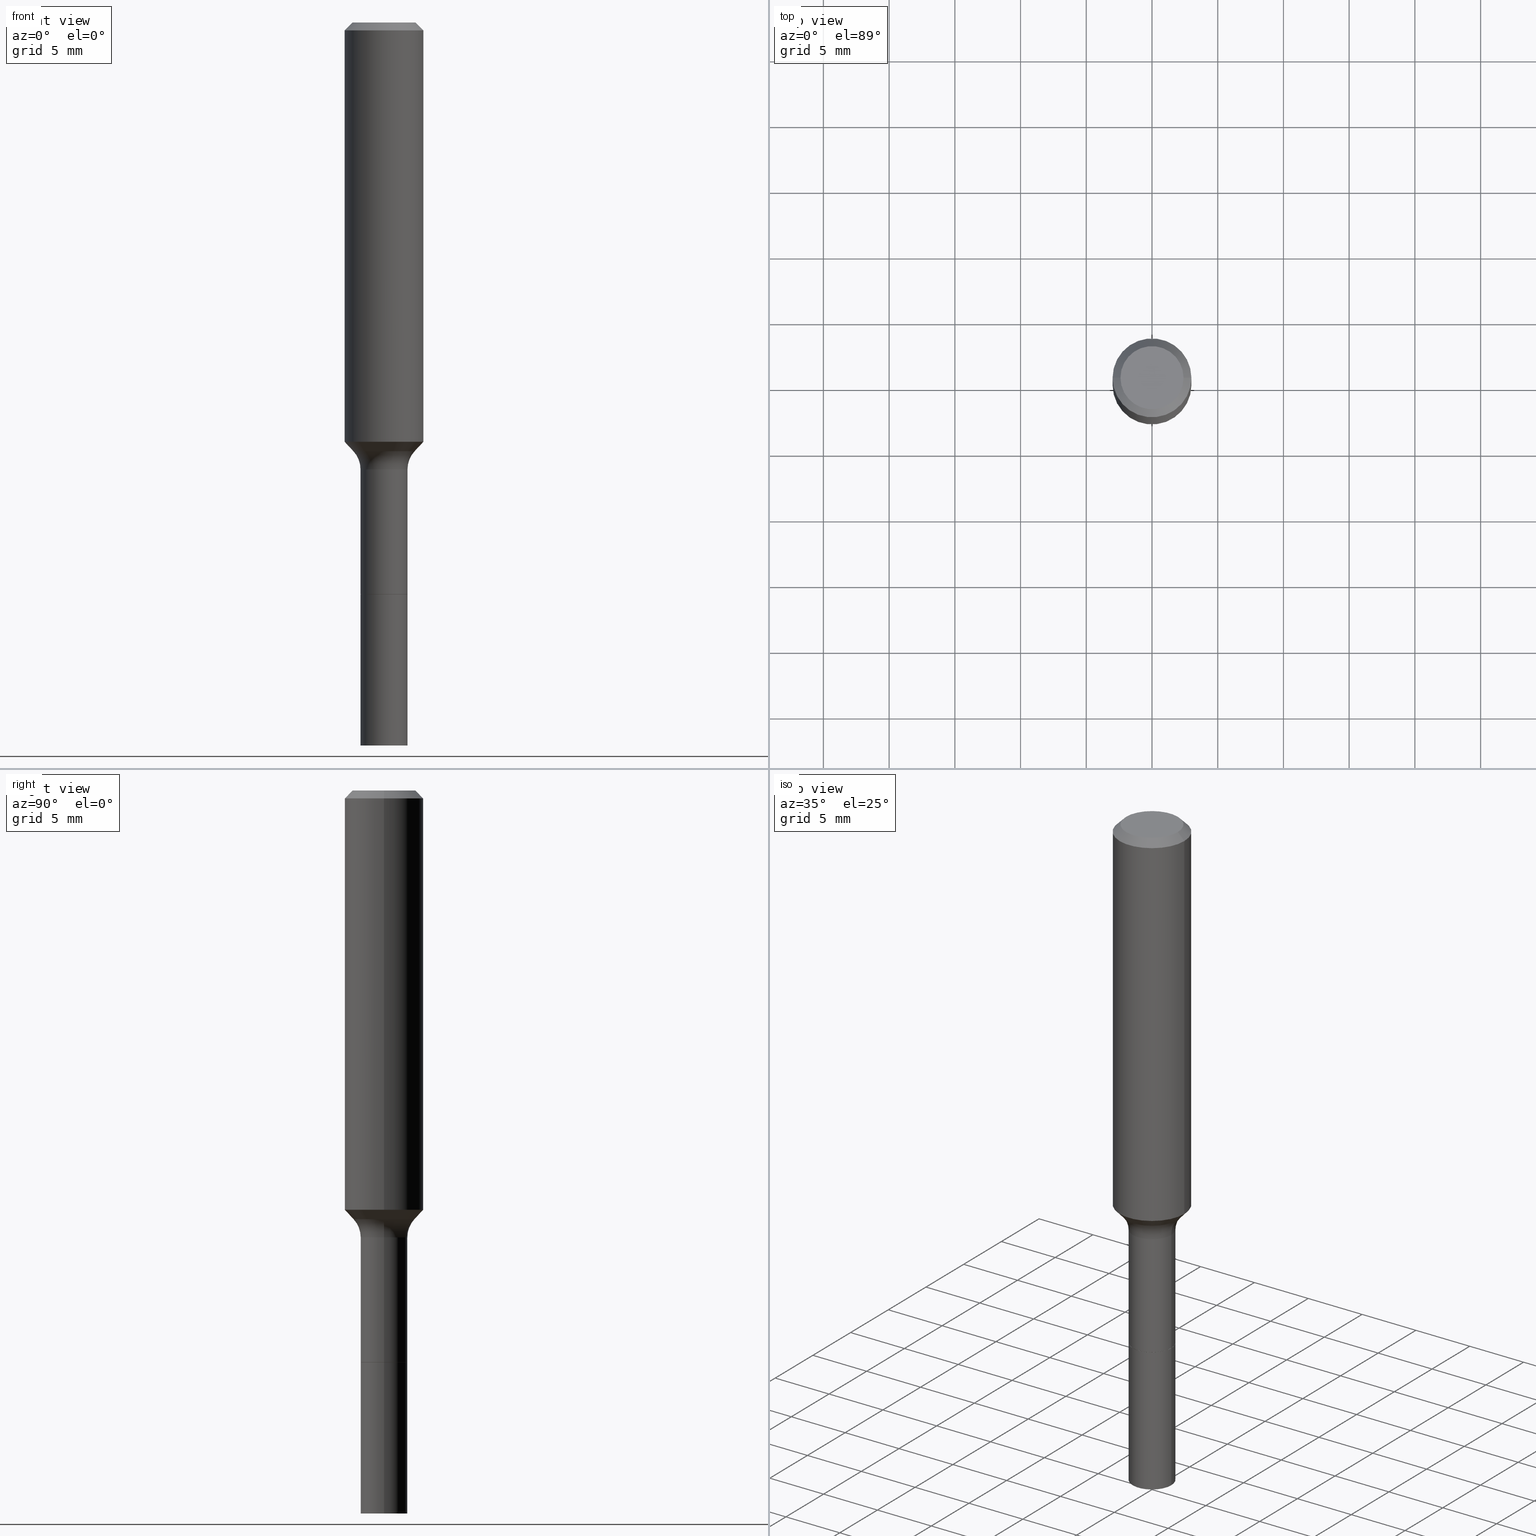
[diagram: canonical four-view strip — front | top / right | iso, engineering-drawing reading convention]
A machine part, canonical four-view strip (front | top / right | iso — engineering-drawing reading convention). The complete STEP part file that produces these views, byte-faithful:
ISO-10303-21;
HEADER;
FILE_DESCRIPTION (( 'STEP AP203' ),
    '1' );
FILE_NAME ('58803.STEP',
    '2025-04-01T15:24:54',
    ( '' ),
    ( '' ),
    'SwSTEP 2.0',
    'SolidWorks 2024',
    '' );
FILE_SCHEMA (( 'CONFIG_CONTROL_DESIGN' ));
ENDSEC;

DATA;
#1 = CARTESIAN_POINT ( 'NONE',  ( 5.295418152913294345E-29, -7.560453691130947423E-15, -2.165399999999999991 ) ) ;
#2 = ORIENTED_EDGE ( 'NONE', *, *, #11, .T. ) ;
#3 = CARTESIAN_POINT ( 'NONE',  ( 4.187620783711426965E-29, -5.978812644635001292E-15, -1.712399999999999700 ) ) ;
#4 = VERTEX_POINT ( 'NONE', #142 ) ;
#5 = CC_DESIGN_PERSON_AND_ORGANIZATION_ASSIGNMENT ( #265, #505, ( #306 ) ) ;
#6 = CARTESIAN_POINT ( 'NONE',  ( 5.776197320209329284E-31, -8.246878922347561759E-17, -0.02362000000000015129 ) ) ;
#7 = ORIENTED_EDGE ( 'NONE', *, *, #29, .T. ) ;
#8 = LOCAL_TIME ( 11, 24, 54.00000000000000000, #26 ) ;
#9 = DIRECTION ( 'NONE',  ( -2.445468806185136877E-29, 3.491481338843145188E-15, 1.000000000000000000 ) ) ;
#10 = ORIENTED_EDGE ( 'NONE', *, *, #60, .T. ) ;
#11 = EDGE_CURVE ( 'NONE', #213, #209, #116, .T. ) ;
#12 = DIRECTION ( 'NONE',  ( 1.000000000000000000, -6.982962677686267499E-15, 4.883557194083113462E-29 ) ) ;
#13 = VERTEX_POINT ( 'NONE', #299 ) ;
#14 = EDGE_CURVE ( 'NONE', #13, #335, #484, .T. ) ;
#15 = CARTESIAN_POINT ( 'NONE',  ( 4.186398049308334724E-29, -5.977066903965580577E-15, -1.711899999999999755 ) ) ;
#16 = ORIENTED_EDGE ( 'NONE', *, *, #350, .T. ) ;
#17 = AXIS2_PLACEMENT_3D ( 'NONE', #266, #349, #510 ) ;
#18 = LOCAL_TIME ( 11, 24, 54.00000000000000000, #70 ) ;
#19 = DIRECTION ( 'NONE',  ( 2.438088387897960049E-29, -3.491481338843145188E-15, -1.000000000000000000 ) ) ;
#20 = APPLICATION_CONTEXT ( 'configuration controlled 3d designs of mechanical parts and assemblies' ) ;
#21 = ORIENTED_EDGE ( 'NONE', *, *, #455, .F. ) ;
#22 =( CONVERSION_BASED_UNIT ( 'INCH', #296 ) LENGTH_UNIT ( ) NAMED_UNIT ( #501 ) );
#23 = ORIENTED_EDGE ( 'NONE', *, *, #206, .T. ) ;
#24 = ADVANCED_FACE ( 'NONE', ( #498 ), #180, .T. ) ;
#25 = EDGE_LOOP ( 'NONE', ( #249, #123, #380, #217 ) ) ;
#26 = COORDINATED_UNIVERSAL_TIME_OFFSET ( 5, 0, .BEHIND. ) ;
#27 = VECTOR ( 'NONE', #64, 39.37007874015748143 ) ;
#28 = ORIENTED_EDGE ( 'NONE', *, *, #368, .F. ) ;
#29 = EDGE_CURVE ( 'NONE', #161, #84, #257, .T. ) ;
#30 = DIRECTION ( 'NONE',  ( -2.445468806185136597E-29, 3.491481338843145583E-15, 1.000000000000000000 ) ) ;
#31 = DIRECTION ( 'NONE',  ( 2.445468806185136597E-29, -3.491481338843145583E-15, -1.000000000000000000 ) ) ;
#32 = UNCERTAINTY_MEASURE_WITH_UNIT (LENGTH_MEASURE( 1.000000000000000082E-05 ), #22, 'distance_accuracy_value', 'NONE');
#33 = PERSON_AND_ORGANIZATION ( #372, #339 ) ;
#34 = VECTOR ( 'NONE', #54, 39.37007874015748143 ) ;
#35 = FACE_OUTER_BOUND ( 'NONE', #285, .T. ) ;
#36 = CIRCLE ( 'NONE', #193, 0.09179170387046625690 ) ;
#37 = SHAPE_DEFINITION_REPRESENTATION ( #189, #69 ) ;
#38 = FACE_OUTER_BOUND ( 'NONE', #405, .T. ) ;
#39 = CARTESIAN_POINT ( 'NONE',  ( 3.273015450198186344E-29, -4.672998623907665346E-15, -1.338399999999999812 ) ) ;
#40 = CARTESIAN_POINT ( 'NONE',  ( 0.07030000000000014015, -8.051355967372291581E-15, -2.165399999999999991 ) ) ;
#41 = ORIENTED_EDGE ( 'NONE', *, *, #368, .T. ) ;
#42 = AXIS2_PLACEMENT_3D ( 'NONE', #6, #482, #446 ) ;
#43 = CARTESIAN_POINT ( 'NONE',  ( -0.1180999999999999966, 7.422191030112725094E-16, -0.02362000000000015129 ) ) ;
#44 = EDGE_CURVE ( 'NONE', #13, #213, #134, .T. ) ;
#45 = EDGE_LOOP ( 'NONE', ( #16, #201 ) ) ;
#46 = EDGE_CURVE ( 'NONE', #318, #128, #215, .T. ) ;
#47 = DIRECTION ( 'NONE',  ( -2.445468806185136597E-29, 3.491481338843145583E-15, 1.000000000000000000 ) ) ;
#48 = VERTEX_POINT ( 'NONE', #371 ) ;
#49 = DIRECTION ( 'NONE',  ( -2.445468806185136877E-29, 3.491481338843145188E-15, 1.000000000000000000 ) ) ;
#50 = ORIENTED_EDGE ( 'NONE', *, *, #425, .T. ) ;
#51 = DIRECTION ( 'NONE',  ( -2.445468806185136597E-29, 3.491481338843145583E-15, 1.000000000000000000 ) ) ;
#52 = ORIENTED_EDGE ( 'NONE', *, *, #44, .T. ) ;
#53 =( LENGTH_UNIT ( ) NAMED_UNIT ( * ) SI_UNIT ( $, .METRE. ) );
#54 = DIRECTION ( 'NONE',  ( 0.7071067811865459074, -7.319954787623249734E-15, -0.7071067811865491270 ) ) ;
#55 = CARTESIAN_POINT ( 'NONE',  ( -0.07029999999999998750, 4.995115432393503418E-16, -3.458011368449198169E-30 ) ) ;
#56 = DIRECTION ( 'NONE',  ( -2.445468806185136597E-29, 3.491481338843145583E-15, 1.000000000000000000 ) ) ;
#57 = AXIS2_PLACEMENT_3D ( 'NONE', #71, #438, #115 ) ;
#58 = AXIS2_PLACEMENT_3D ( 'NONE', #3, #491, #178 ) ;
#59 = CARTESIAN_POINT ( 'NONE',  ( 5.776197320209329284E-31, -8.246878922347561759E-17, -0.02362000000000015129 ) ) ;
#60 = EDGE_CURVE ( 'NONE', #48, #84, #327, .T. ) ;
#61 = DIRECTION ( 'NONE',  ( -2.445468806185136597E-29, 3.491481338843145583E-15, 1.000000000000000000 ) ) ;
#62 = CARTESIAN_POINT ( 'NONE',  ( 0.1181000000000000660, -8.246878922347485584E-16, 5.758764772215003944E-30 ) ) ;
#63 = ORIENTED_EDGE ( 'NONE', *, *, #476, .T. ) ;
#64 = DIRECTION ( 'NONE',  ( -2.445468806185136877E-29, 3.491481338843145188E-15, 1.000000000000000000 ) ) ;
#65 = ORIENTED_EDGE ( 'NONE', *, *, #267, .F. ) ;
#66 = ADVANCED_FACE ( 'NONE', ( #459 ), #353, .F. ) ;
#67 = AXIS2_PLACEMENT_3D ( 'NONE', #162, #163, #320 ) ;
#68 = CARTESIAN_POINT ( 'NONE',  ( 3.273015450198186344E-29, -4.672998623907665346E-15, -1.338399999999999812 ) ) ;
#69 = ADVANCED_BREP_SHAPE_REPRESENTATION ( '58803', ( #210, #396, #101 ), #386 ) ;
#70 = COORDINATED_UNIVERSAL_TIME_OFFSET ( 5, 0, .BEHIND. ) ;
#71 = CARTESIAN_POINT ( 'NONE',  ( 4.187620783711426965E-29, -5.978812644635001292E-15, -1.712399999999999700 ) ) ;
#72 = DATE_AND_TIME ( #235, #140 ) ;
#73 = FACE_OUTER_BOUND ( 'NONE', #205, .T. ) ;
#74 = DATE_TIME_ROLE ( 'classification_date' ) ;
#75 = DIRECTION ( 'NONE',  ( -2.445468806185136597E-29, 3.491481338843145583E-15, 1.000000000000000000 ) ) ;
#76 = AXIS2_PLACEMENT_3D ( 'NONE', #495, #255, #330 ) ;
#77 = CALENDAR_DATE ( 2025, 1, 4 ) ;
#78 = CARTESIAN_POINT ( 'NONE',  ( 5.776197320209329284E-31, -8.246878922347561759E-17, -0.02362000000000015129 ) ) ;
#79 = PLANE ( 'NONE',  #58 ) ;
#80 = ORIENTED_EDGE ( 'NONE', *, *, #298, .F. ) ;
#81 = FACE_OUTER_BOUND ( 'NONE', #454, .T. ) ;
#82 = CC_DESIGN_PERSON_AND_ORGANIZATION_ASSIGNMENT ( #33, #340, ( #472 ) ) ;
#83 = AXIS2_PLACEMENT_3D ( 'NONE', #39, #395, #308 ) ;
#84 = VERTEX_POINT ( 'NONE', #273 ) ;
#85 = APPROVAL_PERSON_ORGANIZATION ( #270, #358, #272 ) ;
#86 = DIRECTION ( 'NONE',  ( -2.445468806185136597E-29, 3.491481338843145583E-15, 1.000000000000000000 ) ) ;
#87 = ORIENTED_EDGE ( 'NONE', *, *, #455, .T. ) ;
#88 = CYLINDRICAL_SURFACE ( 'NONE', #109, 0.07029999999999998750 ) ;
#89 = ORIENTED_EDGE ( 'NONE', *, *, #214, .F. ) ;
#90 = LINE ( 'NONE', #286, #159 ) ;
#91 = EDGE_LOOP ( 'NONE', ( #125, #7, #462, #449 ) ) ;
#92 = VECTOR ( 'NONE', #183, 39.37007874015748143 ) ;
#93 = CIRCLE ( 'NONE', #219, 0.07030000000000000138 ) ;
#94 = CARTESIAN_POINT ( 'NONE',  ( 3.772893820736570314E-46, -5.386692455541008845E-32, -1.542810037565835988E-17 ) ) ;
#95 = ORIENTED_EDGE ( 'NONE', *, *, #14, .F. ) ;
#96 = CARTESIAN_POINT ( 'NONE',  ( -0.1181000000000000660, 8.391509709326787887E-16, -5.809262341591047287E-30 ) ) ;
#97 = EDGE_LOOP ( 'NONE', ( #315, #292, #287, #247 ) ) ;
#98 = DIRECTION ( 'NONE',  ( 1.000000000000000000, -6.982962677686262766E-15, 0.000000000000000000 ) ) ;
#99 = ORIENTED_EDGE ( 'NONE', *, *, #224, .T. ) ;
#100 = CC_DESIGN_DATE_AND_TIME_ASSIGNMENT ( #195, #74, ( #461 ) ) ;
#101 = AXIS2_PLACEMENT_3D ( 'NONE', #192, #182, #345 ) ;
#102 = DIRECTION ( 'NONE',  ( 1.000000000000000000, -6.982962677686271444E-15, 0.000000000000000000 ) ) ;
#103 = ORIENTED_EDGE ( 'NONE', *, *, #267, .T. ) ;
#104 =( NAMED_UNIT ( * ) SI_UNIT ( $, .STERADIAN. ) SOLID_ANGLE_UNIT ( ) );
#105 = ORIENTED_EDGE ( 'NONE', *, *, #14, .T. ) ;
#106 = ADVANCED_FACE ( 'NONE', ( #38 ), #242, .T. ) ;
#107 = COORDINATED_UNIVERSAL_TIME_OFFSET ( 5, 0, .BEHIND. ) ;
#108 = FACE_OUTER_BOUND ( 'NONE', #91, .T. ) ;
#109 = AXIS2_PLACEMENT_3D ( 'NONE', #313, #489, #365 ) ;
#110 = CARTESIAN_POINT ( 'NONE',  ( 4.187620783711426965E-29, -5.978812644635001292E-15, -1.712399999999999700 ) ) ;
#111 = PERSON_AND_ORGANIZATION ( #372, #339 ) ;
#112 = DIRECTION ( 'NONE',  ( 1.000000000000000000, -6.982962677686266711E-15, 4.876176775795936353E-29 ) ) ;
#113 = SECURITY_CLASSIFICATION_LEVEL ( 'unclassified' ) ;
#114 = ADVANCED_FACE ( 'NONE', ( #108 ), #500, .T. ) ;
#115 = DIRECTION ( 'NONE',  ( 1.000000000000000000, -6.982962677686265922E-15, 4.876176775795935793E-29 ) ) ;
#116 = CIRCLE ( 'NONE', #191, 0.1180999999999999966 ) ;
#117 = DIRECTION ( 'NONE',  ( 2.438088387897960049E-29, -3.491481338843145188E-15, -1.000000000000000000 ) ) ;
#118 = CC_DESIGN_APPROVAL ( #184, ( #303 ) ) ;
#119 = DIRECTION ( 'NONE',  ( 1.000000000000000000, -6.982962677686266711E-15, 4.876176775795935232E-29 ) ) ;
#120 = ADVANCED_FACE ( 'NONE', ( #198 ), #475, .T. ) ;
#121 = ADVANCED_FACE ( 'NONE', ( #271 ), #151, .T. ) ;
#122 = CARTESIAN_POINT ( 'NONE',  ( 4.187620783711426965E-29, -5.978812644635001292E-15, -1.712399999999999700 ) ) ;
#123 = ORIENTED_EDGE ( 'NONE', *, *, #341, .T. ) ;
#124 = CARTESIAN_POINT ( 'NONE',  ( 0.09179170387046625690, -5.123481902373974967E-15, -1.283840131195000067 ) ) ;
#125 = ORIENTED_EDGE ( 'NONE', *, *, #507, .T. ) ;
#126 = AXIS2_PLACEMENT_3D ( 'NONE', #59, #261, #423 ) ;
#127 = FACE_OUTER_BOUND ( 'NONE', #447, .T. ) ;
#128 = VERTEX_POINT ( 'NONE', #344 ) ;
#129 = DIRECTION ( 'NONE',  ( 1.000000000000000000, -6.982962677686270655E-15, 0.000000000000000000 ) ) ;
#130 = ORIENTED_EDGE ( 'NONE', *, *, #131, .T. ) ;
#131 = EDGE_CURVE ( 'NONE', #362, #48, #506, .T. ) ;
#132 = DIRECTION ( 'NONE',  ( -6.982962677686266711E-15, -1.000000000000000000, 3.491481338843145583E-15 ) ) ;
#133 = ORIENTED_EDGE ( 'NONE', *, *, #46, .F. ) ;
#134 = LINE ( 'NONE', #415, #34 ) ;
#135 = ADVANCED_FACE ( 'NONE', ( #432 ), #387, .T. ) ;
#136 = DIRECTION ( 'NONE',  ( -0.6819983600624984765, 7.399397606724286576E-15, 0.7313537016191704598 ) ) ;
#137 = CARTESIAN_POINT ( 'NONE',  ( -0.06980000000000000093, -5.482853815074451553E-15, -1.712399999999999700 ) ) ;
#138 = AXIS2_PLACEMENT_3D ( 'NONE', #397, #75, #474 ) ;
#139 = CONICAL_SURFACE ( 'NONE', #518, 0.06980000000000000093, 0.7853981633975507526 ) ;
#140 = LOCAL_TIME ( 11, 24, 54.00000000000000000, #394 ) ;
#141 = DIRECTION ( 'NONE',  ( -2.445468806185136597E-29, 3.491481338843145583E-15, 1.000000000000000000 ) ) ;
#142 = CARTESIAN_POINT ( 'NONE',  ( -0.07030000000000000138, -6.270121624643622536E-15, -1.712399999999999700 ) ) ;
#143 = EDGE_CURVE ( 'NONE', #342, #128, #435, .T. ) ;
#144 = COORDINATED_UNIVERSAL_TIME_OFFSET ( 5, 0, .BEHIND. ) ;
#145 = ORIENTED_EDGE ( 'NONE', *, *, #206, .F. ) ;
#146 = PERSON_AND_ORGANIZATION ( #372, #339 ) ;
#147 = CARTESIAN_POINT ( 'NONE',  ( -0.1180999999999999966, -1.394084180029604768E-15, -0.02362000000000015129 ) ) ;
#148 = AXIS2_PLACEMENT_3D ( 'NONE', #352, #187, #112 ) ;
#149 = PERSON_AND_ORGANIZATION_ROLE ( 'creator' ) ;
#150 = AXIS2_PLACEMENT_3D ( 'NONE', #279, #47, #119 ) ;
#151 = CYLINDRICAL_SURFACE ( 'NONE', #17, 0.07030000000000007077 ) ;
#152 = ADVANCED_FACE ( 'NONE', ( #73 ), #513, .T. ) ;
#153 = DATE_AND_TIME ( #390, #18 ) ;
#154 = DIRECTION ( 'NONE',  ( -1.000000000000000000, 6.982962677686265922E-15, -4.876176775795935793E-29 ) ) ;
#155 = CARTESIAN_POINT ( 'NONE',  ( 3.070598953603803991E-29, -4.384001512701092839E-15, -1.255627937611624390 ) ) ;
#156 = VECTOR ( 'NONE', #49, 39.37007874015748143 ) ;
#157 = CARTESIAN_POINT ( 'NONE',  ( 0.09179170387046629853, -5.123481902373974967E-15, -1.283840131195000067 ) ) ;
#158 = EDGE_CURVE ( 'NONE', #161, #362, #509, .T. ) ;
#159 = VECTOR ( 'NONE', #204, 39.37007874015748143 ) ;
#160 = DIRECTION ( 'NONE',  ( 7.105427357601001859E-15, 1.000000000000000000, -3.491481338843145583E-15 ) ) ;
#161 = VERTEX_POINT ( 'NONE', #434 ) ;
#162 = CARTESIAN_POINT ( 'NONE',  ( 0.000000000000000000, 0.000000000000000000, 0.000000000000000000 ) ) ;
#163 = DIRECTION ( 'NONE',  ( -2.445468806185136597E-29, 3.491481338843145583E-15, 1.000000000000000000 ) ) ;
#164 = AXIS2_PLACEMENT_3D ( 'NONE', #430, #346, #428 ) ;
#165 = ORIENTED_EDGE ( 'NONE', *, *, #334, .T. ) ;
#166 = CONICAL_SURFACE ( 'NONE', #42, 0.1180999999999999966, 0.7853981633974460586 ) ;
#167 = CARTESIAN_POINT ( 'NONE',  ( 0.1181000000000001493, -5.208689404935841102E-15, -1.255627937611624390 ) ) ;
#168 = ORIENTED_EDGE ( 'NONE', *, *, #492, .F. ) ;
#169 = DIRECTION ( 'NONE',  ( -1.000000000000000000, 6.982962677686265922E-15, -4.876176775795935793E-29 ) ) ;
#170 = VERTEX_POINT ( 'NONE', #233 ) ;
#171 = ORIENTED_EDGE ( 'NONE', *, *, #158, .F. ) ;
#172 = AXIS2_PLACEMENT_3D ( 'NONE', #258, #220, #12 ) ;
#173 = AXIS2_PLACEMENT_3D ( 'NONE', #458, #263, #370 ) ;
#174 = ADVANCED_FACE ( 'NONE', ( #515 ), #281, .T. ) ;
#175 = FACE_OUTER_BOUND ( 'NONE', #442, .T. ) ;
#176 = ORIENTED_EDGE ( 'NONE', *, *, #392, .T. ) ;
#177 = CARTESIAN_POINT ( 'NONE',  ( 7.545787641473140628E-46, -1.077338491108201769E-31, -3.085620075131671975E-17 ) ) ;
#178 = DIRECTION ( 'NONE',  ( -1.000000000000000000, 6.982962677686265922E-15, -4.876176775795935793E-29 ) ) ;
#179 = ORIENTED_EDGE ( 'NONE', *, *, #392, .F. ) ;
#180 = CONICAL_SURFACE ( 'NONE', #226, 0.09179170387046625690, 0.7504915783575617505 ) ;
#181 = CIRCLE ( 'NONE', #485, 0.07030000000000014015 ) ;
#182 = DIRECTION ( 'NONE',  ( 0.000000000000000000, 0.000000000000000000, 1.000000000000000000 ) ) ;
#183 = DIRECTION ( 'NONE',  ( -0.7071067811866199593, 7.493145998870616062E-15, 0.7071067811864750752 ) ) ;
#184 = APPROVAL ( #232, 'UNSPECIFIED' ) ;
#185 = PERSON_AND_ORGANIZATION ( #372, #339 ) ;
#186 = DATE_TIME_ROLE ( 'creation_date' ) ;
#187 = DIRECTION ( 'NONE',  ( -2.445468806185136597E-29, 3.491481338843145583E-15, 1.000000000000000000 ) ) ;
#188 = ADVANCED_FACE ( 'NONE', ( #35 ), #310, .F. ) ;
#189 = PRODUCT_DEFINITION_SHAPE ( 'NONE', 'NONE',  #303 ) ;
#190 = CC_DESIGN_PERSON_AND_ORGANIZATION_ASSIGNMENT ( #388, #437, ( #461 ) ) ;
#191 = AXIS2_PLACEMENT_3D ( 'NONE', #496, #61, #221 ) ;
#192 = CARTESIAN_POINT ( 'NONE',  ( 0.000000000000000000, 0.000000000000000000, 0.000000000000000000 ) ) ;
#193 = AXIS2_PLACEMENT_3D ( 'NONE', #456, #141, #373 ) ;
#194 = DIRECTION ( 'NONE',  ( 1.000000000000000000, -6.982962677686271444E-15, 0.000000000000000000 ) ) ;
#195 = DATE_AND_TIME ( #473, #8 ) ;
#196 = DIRECTION ( 'NONE',  ( -2.445468806185136597E-29, 3.491481338843145583E-15, 1.000000000000000000 ) ) ;
#197 = EDGE_CURVE ( 'NONE', #222, #170, #208, .T. ) ;
#198 = FACE_OUTER_BOUND ( 'NONE', #262, .T. ) ;
#199 = DIRECTION ( 'NONE',  ( 1.000000000000000000, -6.982962677686264344E-15, 0.000000000000000000 ) ) ;
#200 = CIRCLE ( 'NONE', #452, 0.07999999999999996003 ) ;
#201 = ORIENTED_EDGE ( 'NONE', *, *, #254, .T. ) ;
#202 = CARTESIAN_POINT ( 'NONE',  ( -0.1502999999999999614, -3.605052892060234844E-15, -1.338399999999999812 ) ) ;
#203 = ORIENTED_EDGE ( 'NONE', *, *, #11, .F. ) ;
#204 = DIRECTION ( 'NONE',  ( -2.445468806185136877E-29, 3.491481338843145188E-15, 1.000000000000000000 ) ) ;
#205 = EDGE_LOOP ( 'NONE', ( #376, #407 ) ) ;
#206 = EDGE_CURVE ( 'NONE', #259, #290, #410, .T. ) ;
#207 = CARTESIAN_POINT ( 'NONE',  ( 0.07029999999999995974, -5.163900900149009505E-15, -1.338399999999999812 ) ) ;
#208 = CIRCLE ( 'NONE', #338, 0.07030000000000014015 ) ;
#209 = VERTEX_POINT ( 'NONE', #147 ) ;
#210 = MANIFOLD_SOLID_BREP ( 'Body-Move/Copy2[1]', #419 ) ;
#211 = CIRCLE ( 'NONE', #319, 0.06980000000000000093 ) ;
#212 = CARTESIAN_POINT ( 'NONE',  ( 3.139590992966006013E-29, -4.482503860125278864E-15, -1.283840131195000067 ) ) ;
#213 = VERTEX_POINT ( 'NONE', #304 ) ;
#214 = EDGE_CURVE ( 'NONE', #48, #290, #466, .T. ) ;
#215 = LINE ( 'NONE', #497, #385 ) ;
#216 = CC_DESIGN_DATE_AND_TIME_ASSIGNMENT ( #153, #186, ( #303 ) ) ;
#217 = ORIENTED_EDGE ( 'NONE', *, *, #289, .F. ) ;
#218 = AXIS2_PLACEMENT_3D ( 'NONE', #269, #117, #154 ) ;
#219 = AXIS2_PLACEMENT_3D ( 'NONE', #15, #379, #294 ) ;
#220 = DIRECTION ( 'NONE',  ( -2.445468806185136597E-29, 3.491481338843145583E-15, 1.000000000000000000 ) ) ;
#221 = DIRECTION ( 'NONE',  ( 1.000000000000000000, -6.982962677686266711E-15, 0.000000000000000000 ) ) ;
#222 = VERTEX_POINT ( 'NONE', #40 ) ;
#223 = CARTESIAN_POINT ( 'NONE',  ( 0.1502999999999999614, -5.722537914363910368E-15, -1.338399999999999812 ) ) ;
#224 = EDGE_CURVE ( 'NONE', #128, #342, #451, .T. ) ;
#225 = ORIENTED_EDGE ( 'NONE', *, *, #158, .T. ) ;
#226 = AXIS2_PLACEMENT_3D ( 'NONE', #328, #256, #463 ) ;
#227 = AXIS2_PLACEMENT_3D ( 'NONE', #412, #51, #240 ) ;
#228 = DIRECTION ( 'NONE',  ( 1.000000000000000000, -6.982962677686269077E-15, 0.000000000000000000 ) ) ;
#229 = PERSON_AND_ORGANIZATION ( #372, #339 ) ;
#230 = CARTESIAN_POINT ( 'NONE',  ( 0.07029999999999998750, -4.909022762413444543E-16, 3.427952273384541736E-30 ) ) ;
#231 = ADVANCED_FACE ( 'NONE', ( #81 ), #139, .T. ) ;
#232 = APPROVAL_STATUS ( 'not_yet_approved' ) ;
#233 = CARTESIAN_POINT ( 'NONE',  ( -0.07030000000000012628, -6.270121624643621747E-15, -2.165399999999999991 ) ) ;
#234 = CLOSED_SHELL ( 'NONE', ( #114, #174, #120, #24, #486, #332, #284, #66, #106, #316, #238, #381, #188, #231 ) ) ;
#235 = CALENDAR_DATE ( 2025, 1, 4 ) ;
#236 = TOROIDAL_SURFACE ( 'NONE', #172, 0.1502999999999999614, 0.07999999999999996003 ) ;
#237 = DIRECTION ( 'NONE',  ( 0.7071067811866199593, -2.468850131083015945E-15, 0.7071067811864750752 ) ) ;
#238 = ADVANCED_FACE ( 'NONE', ( #367 ), #166, .T. ) ;
#239 = DIRECTION ( 'NONE',  ( -2.445468806185136597E-29, 3.491481338843145583E-15, 1.000000000000000000 ) ) ;
#240 = DIRECTION ( 'NONE',  ( 1.000000000000000000, -6.982962677686265133E-15, 0.000000000000000000 ) ) ;
#241 = ORIENTED_EDGE ( 'NONE', *, *, #298, .T. ) ;
#242 = CONICAL_SURFACE ( 'NONE', #260, 0.09179170387046625690, 0.7504915783575617505 ) ;
#243 = DIRECTION ( 'NONE',  ( 0.6819983600624984765, -2.208861293262475014E-15, 0.7313537016191704598 ) ) ;
#244 = ORIENTED_EDGE ( 'NONE', *, *, #46, .T. ) ;
#245 = DIRECTION ( 'NONE',  ( -2.445468806185136597E-29, 3.491481338843145583E-15, 1.000000000000000000 ) ) ;
#246 = EDGE_CURVE ( 'NONE', #321, #342, #283, .T. ) ;
#247 = ORIENTED_EDGE ( 'NONE', *, *, #254, .F. ) ;
#248 = CARTESIAN_POINT ( 'NONE',  ( 4.187620783711426965E-29, -5.978812644635001292E-15, -1.712399999999999700 ) ) ;
#249 = ORIENTED_EDGE ( 'NONE', *, *, #197, .T. ) ;
#250 = LINE ( 'NONE', #278, #401 ) ;
#251 = AXIS2_PLACEMENT_3D ( 'NONE', #68, #464, #228 ) ;
#252 = EDGE_LOOP ( 'NONE', ( #337, #99, #176, #280 ) ) ;
#253 = VECTOR ( 'NONE', #322, 39.37007874015748143 ) ;
#254 = EDGE_CURVE ( 'NONE', #4, #504, #312, .T. ) ;
#255 = DIRECTION ( 'NONE',  ( -2.445468806185136597E-29, 3.491481338843145583E-15, 1.000000000000000000 ) ) ;
#256 = DIRECTION ( 'NONE',  ( -2.445468806185136597E-29, 3.491481338843145583E-15, 1.000000000000000000 ) ) ;
#257 = LINE ( 'NONE', #137, #92 ) ;
#258 = CARTESIAN_POINT ( 'NONE',  ( 3.273015450198186344E-29, -4.672998623907665346E-15, -1.338399999999999812 ) ) ;
#259 = VERTEX_POINT ( 'NONE', #441 ) ;
#260 = AXIS2_PLACEMENT_3D ( 'NONE', #391, #30, #351 ) ;
#261 = DIRECTION ( 'NONE',  ( -2.445468806185136597E-29, 3.491481338843145583E-15, 1.000000000000000000 ) ) ;
#262 = EDGE_LOOP ( 'NONE', ( #493, #366, #203, #179 ) ) ;
#263 = DIRECTION ( 'NONE',  ( -2.445468806185136597E-29, 3.491481338843145583E-15, 1.000000000000000000 ) ) ;
#264 = ORIENTED_EDGE ( 'NONE', *, *, #476, .F. ) ;
#265 = PERSON_AND_ORGANIZATION ( #372, #339 ) ;
#266 = CARTESIAN_POINT ( 'NONE',  ( 4.187620783711426965E-29, -5.978812644635001292E-15, -1.712399999999999700 ) ) ;
#267 = EDGE_CURVE ( 'NONE', #318, #321, #329, .T. ) ;
#268 = APPROVAL_PERSON_ORGANIZATION ( #146, #470, #307 ) ;
#269 = CARTESIAN_POINT ( 'NONE',  ( 5.295418152913294345E-29, -7.560453691130947423E-15, -2.165399999999999991 ) ) ;
#270 = PERSON_AND_ORGANIZATION ( #372, #339 ) ;
#271 = FACE_OUTER_BOUND ( 'NONE', #25, .T. ) ;
#272 = APPROVAL_ROLE ( '' ) ;
#273 = CARTESIAN_POINT ( 'NONE',  ( -0.07030000000000000138, -4.825521220697272718E-15, -1.711899999999999755 ) ) ;
#274 = AXIS2_PLACEMENT_3D ( 'NONE', #78, #31, #276 ) ;
#275 = PERSON_AND_ORGANIZATION_ROLE ( 'creator' ) ;
#276 = DIRECTION ( 'NONE',  ( -1.000000000000000000, 6.982962677686266711E-15, 0.000000000000000000 ) ) ;
#277 = EDGE_CURVE ( 'NONE', #170, #222, #181, .T. ) ;
#278 = CARTESIAN_POINT ( 'NONE',  ( -0.07030000000000007077, -5.479301101395650654E-15, -1.712399999999999700 ) ) ;
#279 = CARTESIAN_POINT ( 'NONE',  ( 0.000000000000000000, 0.000000000000000000, 0.000000000000000000 ) ) ;
#280 = ORIENTED_EDGE ( 'NONE', *, *, #439, .F. ) ;
#281 = CONICAL_SURFACE ( 'NONE', #274, 0.1180999999999999966, 0.7853981633974460586 ) ;
#282 = CIRCLE ( 'NONE', #76, 0.07029999999999995974 ) ;
#283 = LINE ( 'NONE', #124, #354 ) ;
#284 = ADVANCED_FACE ( 'NONE', ( #314 ), #448, .T. ) ;
#285 = EDGE_LOOP ( 'NONE', ( #427, #171 ) ) ;
#286 = CARTESIAN_POINT ( 'NONE',  ( 0.07030000000000007077, -6.469714920876347028E-15, -1.712399999999999700 ) ) ;
#287 = ORIENTED_EDGE ( 'NONE', *, *, #289, .T. ) ;
#288 = CARTESIAN_POINT ( 'NONE',  ( 3.070598953603803991E-29, -4.384001512701092839E-15, -1.255627937611624390 ) ) ;
#289 = EDGE_CURVE ( 'NONE', #222, #504, #90, .T. ) ;
#290 = VERTEX_POINT ( 'NONE', #207 ) ;
#291 = DIRECTION ( 'NONE',  ( -2.445468806185136877E-29, 3.491481338843145188E-15, 1.000000000000000000 ) ) ;
#292 = ORIENTED_EDGE ( 'NONE', *, *, #277, .T. ) ;
#293 = APPROVAL_PERSON_ORGANIZATION ( #111, #184, #348 ) ;
#294 = DIRECTION ( 'NONE',  ( 1.000000000000000000, -6.982962677686265133E-15, 0.000000000000000000 ) ) ;
#295 = EDGE_LOOP ( 'NONE', ( #65, #165, #23, #490 ) ) ;
#296 = LENGTH_MEASURE_WITH_UNIT ( LENGTH_MEASURE( 0.02539999999999999897 ), #53 );
#297 = DIRECTION ( 'NONE',  ( 1.000000000000000000, -6.982962677686265133E-15, 0.000000000000000000 ) ) ;
#298 = EDGE_CURVE ( 'NONE', #335, #209, #403, .T. ) ;
#299 = CARTESIAN_POINT ( 'NONE',  ( 0.09447999999999998066, -7.704367267948738690E-16, -3.085620075131172158E-17 ) ) ;
#300 = EDGE_LOOP ( 'NONE', ( #95, #52, #2, #80 ) ) ;
#301 = APPROVAL_STATUS ( 'not_yet_approved' ) ;
#302 = DIRECTION ( 'NONE',  ( 1.000000000000000000, -6.982962677686265133E-15, 0.000000000000000000 ) ) ;
#303 = PRODUCT_DEFINITION ( 'UNKNOWN', '', #306, #404 ) ;
#304 = CARTESIAN_POINT ( 'NONE',  ( 0.1180999999999999966, -9.071566814582237199E-16, -0.02362000000000015129 ) ) ;
#305 = AXIS2_PLACEMENT_3D ( 'NONE', #110, #311, #194 ) ;
#306 = PRODUCT_DEFINITION_FORMATION_WITH_SPECIFIED_SOURCE ( 'ANY', '', #472, .NOT_KNOWN. ) ;
#307 = APPROVAL_ROLE ( '' ) ;
#308 = DIRECTION ( 'NONE',  ( 1.000000000000000000, -6.982962677686267499E-15, 4.883557194083113462E-29 ) ) ;
#309 = APPROVAL_DATE_TIME ( #382, #184 ) ;
#310 = PLANE ( 'NONE',  #57 ) ;
#311 = DIRECTION ( 'NONE',  ( -2.445468806185136597E-29, 3.491481338843145583E-15, 1.000000000000000000 ) ) ;
#312 = CIRCLE ( 'NONE', #374, 0.07030000000000000138 ) ;
#313 = CARTESIAN_POINT ( 'NONE',  ( 0.000000000000000000, 0.000000000000000000, 0.000000000000000000 ) ) ;
#314 = FACE_OUTER_BOUND ( 'NONE', #325, .T. ) ;
#315 = ORIENTED_EDGE ( 'NONE', *, *, #341, .F. ) ;
#316 = ADVANCED_FACE ( 'NONE', ( #361 ), #408, .T. ) ;
#317 = CARTESIAN_POINT ( 'NONE',  ( -0.09447999999999998066, 7.009847083995354710E-16, -3.085620075132147757E-17 ) ) ;
#318 = VERTEX_POINT ( 'NONE', #487 ) ;
#319 = AXIS2_PLACEMENT_3D ( 'NONE', #499, #414, #102 ) ;
#320 = DIRECTION ( 'NONE',  ( 1.000000000000000000, -6.982962677686266711E-15, 4.876176775795936353E-29 ) ) ;
#321 = VERTEX_POINT ( 'NONE', #157 ) ;
#322 = DIRECTION ( 'NONE',  ( -0.7071067811865459074, 2.468850131082240100E-15, -0.7071067811865491270 ) ) ;
#323 = EDGE_LOOP ( 'NONE', ( #413, #28, #483, #87 ) ) ;
#324 = LINE ( 'NONE', #62, #27 ) ;
#325 = EDGE_LOOP ( 'NONE', ( #168, #63, #378, #145 ) ) ;
#326 = PLANE ( 'NONE',  #477 ) ;
#327 = CIRCLE ( 'NONE', #429, 0.07030000000000000138 ) ;
#328 = CARTESIAN_POINT ( 'NONE',  ( 3.139590992966006013E-29, -4.482503860125278864E-15, -1.283840131195000067 ) ) ;
#329 = CIRCLE ( 'NONE', #411, 0.09179170387046625690 ) ;
#330 = DIRECTION ( 'NONE',  ( 1.000000000000000000, -6.982962677686269077E-15, 0.000000000000000000 ) ) ;
#331 = DIRECTION ( 'NONE',  ( 1.000000000000000000, -6.982962677686267499E-15, 4.875432709231658792E-29 ) ) ;
#332 = ADVANCED_FACE ( 'NONE', ( #127 ), #88, .T. ) ;
#333 =( NAMED_UNIT ( * ) PLANE_ANGLE_UNIT ( ) SI_UNIT ( $, .RADIAN. ) );
#334 = EDGE_CURVE ( 'NONE', #318, #259, #200, .T. ) ;
#335 = VERTEX_POINT ( 'NONE', #317 ) ;
#336 = CARTESIAN_POINT ( 'NONE',  ( 0.07030000000000000138, -6.469714920876346239E-15, -1.712399999999999700 ) ) ;
#337 = ORIENTED_EDGE ( 'NONE', *, *, #375, .F. ) ;
#338 = AXIS2_PLACEMENT_3D ( 'NONE', #516, #239, #302 ) ;
#339 = ORGANIZATION ( 'UNSPECIFIED', 'UNSPECIFIED', '' ) ;
#340 = PERSON_AND_ORGANIZATION_ROLE ( 'design_owner' ) ;
#341 = EDGE_CURVE ( 'NONE', #170, #4, #250, .T. ) ;
#342 = VERTEX_POINT ( 'NONE', #167 ) ;
#343 = DATE_AND_TIME ( #433, #511 ) ;
#344 = CARTESIAN_POINT ( 'NONE',  ( -0.1181000000000001493, -3.544850541768413065E-15, -1.255627937611624390 ) ) ;
#345 = DIRECTION ( 'NONE',  ( 1.000000000000000000, 0.000000000000000000, 0.000000000000000000 ) ) ;
#346 = DIRECTION ( 'NONE',  ( -2.445468806185136597E-29, 3.491481338843145583E-15, 1.000000000000000000 ) ) ;
#347 = CC_DESIGN_APPROVAL ( #358, ( #306 ) ) ;
#348 = APPROVAL_ROLE ( '' ) ;
#349 = DIRECTION ( 'NONE',  ( -2.445468806185136597E-29, 3.491481338843145583E-15, 1.000000000000000000 ) ) ;
#350 = EDGE_CURVE ( 'NONE', #504, #4, #420, .T. ) ;
#351 = DIRECTION ( 'NONE',  ( 1.000000000000000000, -6.982962677686270655E-15, 0.000000000000000000 ) ) ;
#352 = CARTESIAN_POINT ( 'NONE',  ( 0.000000000000000000, 0.000000000000000000, 0.000000000000000000 ) ) ;
#353 = TOROIDAL_SURFACE ( 'NONE', #83, 0.1502999999999999614, 0.07999999999999996003 ) ;
#354 = VECTOR ( 'NONE', #243, 39.37007874015748854 ) ;
#355 = DIRECTION ( 'NONE',  ( -2.445468806185136597E-29, 3.491481338843145583E-15, 1.000000000000000000 ) ) ;
#356 = ADVANCED_FACE ( 'NONE', ( #440 ), #79, .F. ) ;
#357 = ORIENTED_EDGE ( 'NONE', *, *, #44, .F. ) ;
#358 = APPROVAL ( #431, 'UNSPECIFIED' ) ;
#359 = DIRECTION ( 'NONE',  ( -1.000000000000000000, 7.105427357601001859E-15, 0.000000000000000000 ) ) ;
#360 = ORIENTED_EDGE ( 'NONE', *, *, #492, .T. ) ;
#361 = FACE_OUTER_BOUND ( 'NONE', #252, .T. ) ;
#362 = VERTEX_POINT ( 'NONE', #416 ) ;
#363 = VECTOR ( 'NONE', #237, 39.37007874015748143 ) ;
#364 = AXIS2_PLACEMENT_3D ( 'NONE', #223, #132, #98 ) ;
#365 = DIRECTION ( 'NONE',  ( 1.000000000000000000, -6.982962677686266711E-15, 4.876176775795935232E-29 ) ) ;
#366 = ORIENTED_EDGE ( 'NONE', *, *, #375, .T. ) ;
#367 = FACE_OUTER_BOUND ( 'NONE', #502, .T. ) ;
#368 = EDGE_CURVE ( 'NONE', #321, #318, #36, .T. ) ;
#369 = ORIENTED_EDGE ( 'NONE', *, *, #224, .F. ) ;
#370 = DIRECTION ( 'NONE',  ( 1.000000000000000000, -6.982962677686267499E-15, 4.875432709231658792E-29 ) ) ;
#371 = CARTESIAN_POINT ( 'NONE',  ( 0.07030000000000000138, -6.467969180206924735E-15, -1.711899999999999755 ) ) ;
#372 = PERSON ( 'UNSPECIFIED', 'UNSPECIFIED', 'UNSPECIFIED', ('UNSPECIFIED'), ('UNSPECIFIED'), ('UNSPECIFIED') ) ;
#373 = DIRECTION ( 'NONE',  ( 1.000000000000000000, -6.982962677686270655E-15, 0.000000000000000000 ) ) ;
#374 = AXIS2_PLACEMENT_3D ( 'NONE', #122, #86, #479 ) ;
#375 = EDGE_CURVE ( 'NONE', #128, #209, #418, .T. ) ;
#376 = ORIENTED_EDGE ( 'NONE', *, *, #197, .F. ) ;
#377 = LINE ( 'NONE', #55, #467 ) ;
#378 = ORIENTED_EDGE ( 'NONE', *, *, #214, .T. ) ;
#379 = DIRECTION ( 'NONE',  ( -2.445468806185136597E-29, 3.491481338843145583E-15, 1.000000000000000000 ) ) ;
#380 = ORIENTED_EDGE ( 'NONE', *, *, #350, .F. ) ;
#381 = ADVANCED_FACE ( 'NONE', ( #175 ), #326, .F. ) ;
#382 = DATE_AND_TIME ( #77, #393 ) ;
#383 = CC_DESIGN_PERSON_AND_ORGANIZATION_ASSIGNMENT ( #229, #275, ( #303 ) ) ;
#384 = DIRECTION ( 'NONE',  ( -2.445468806185136597E-29, 3.491481338843145583E-15, 1.000000000000000000 ) ) ;
#385 = VECTOR ( 'NONE', #136, 39.37007874015748854 ) ;
#386 =( GEOMETRIC_REPRESENTATION_CONTEXT ( 3 ) GLOBAL_UNCERTAINTY_ASSIGNED_CONTEXT ( ( #32 ) ) GLOBAL_UNIT_ASSIGNED_CONTEXT ( ( #22, #333, #104 ) ) REPRESENTATION_CONTEXT ( 'NONE', 'WORKASPACE' ) );
#387 = CYLINDRICAL_SURFACE ( 'NONE', #164, 0.07030000000000007077 ) ;
#388 = PERSON_AND_ORGANIZATION ( #372, #339 ) ;
#389 = DIRECTION ( 'NONE',  ( 1.000000000000000000, -6.982962677686264344E-15, 0.000000000000000000 ) ) ;
#390 = CALENDAR_DATE ( 2025, 1, 4 ) ;
#391 = CARTESIAN_POINT ( 'NONE',  ( 3.139590992966006013E-29, -4.482503860125278864E-15, -1.283840131195000067 ) ) ;
#392 = EDGE_CURVE ( 'NONE', #342, #213, #324, .T. ) ;
#393 = LOCAL_TIME ( 11, 24, 54.00000000000000000, #107 ) ;
#394 = COORDINATED_UNIVERSAL_TIME_OFFSET ( 5, 0, .BEHIND. ) ;
#395 = DIRECTION ( 'NONE',  ( -2.445468806185136597E-29, 3.491481338843145583E-15, 1.000000000000000000 ) ) ;
#396 = MANIFOLD_SOLID_BREP ( 'Body-Move/Copy2[2]', #234 ) ;
#397 = CARTESIAN_POINT ( 'NONE',  ( 4.187620783711426965E-29, -5.978812644635001292E-15, -1.712399999999999700 ) ) ;
#398 = DIRECTION ( 'NONE',  ( -2.445468806185136597E-29, 3.491481338843145583E-15, 1.000000000000000000 ) ) ;
#399 = EDGE_LOOP ( 'NONE', ( #41, #244, #424, #488 ) ) ;
#400 = CIRCLE ( 'NONE', #364, 0.07999999999999996003 ) ;
#401 = VECTOR ( 'NONE', #9, 39.37007874015748143 ) ;
#402 = APPLICATION_CONTEXT ( 'configuration controlled 3d designs of mechanical parts and assemblies' ) ;
#403 = LINE ( 'NONE', #43, #253 ) ;
#404 = DESIGN_CONTEXT ( 'detailed design', #20, 'design' ) ;
#405 = EDGE_LOOP ( 'NONE', ( #133, #103, #481, #369 ) ) ;
#406 = DIRECTION ( 'NONE',  ( 1.000000000000000000, -6.982962677686265133E-15, 0.000000000000000000 ) ) ;
#407 = ORIENTED_EDGE ( 'NONE', *, *, #277, .F. ) ;
#408 = CYLINDRICAL_SURFACE ( 'NONE', #67, 0.1181000000000000660 ) ;
#409 = ORIENTED_EDGE ( 'NONE', *, *, #439, .T. ) ;
#410 = CIRCLE ( 'NONE', #251, 0.07029999999999995974 ) ;
#411 = AXIS2_PLACEMENT_3D ( 'NONE', #212, #398, #129 ) ;
#412 = CARTESIAN_POINT ( 'NONE',  ( 4.187620783711426965E-29, -5.978812644635001292E-15, -1.712399999999999700 ) ) ;
#413 = ORIENTED_EDGE ( 'NONE', *, *, #334, .F. ) ;
#414 = DIRECTION ( 'NONE',  ( -2.445468806185136597E-29, 3.491481338843145583E-15, 1.000000000000000000 ) ) ;
#415 = CARTESIAN_POINT ( 'NONE',  ( 0.1180999999999999966, -8.926936027602933910E-16, -0.02362000000000015129 ) ) ;
#416 = CARTESIAN_POINT ( 'NONE',  ( 0.06980000000000000093, -6.466223439537503232E-15, -1.712399999999999700 ) ) ;
#417 = ORIENTED_EDGE ( 'NONE', *, *, #425, .F. ) ;
#418 = LINE ( 'NONE', #96, #494 ) ;
#419 = CLOSED_SHELL ( 'NONE', ( #121, #152, #135, #356 ) ) ;
#420 = CIRCLE ( 'NONE', #227, 0.07030000000000000138 ) ;
#421 = ORIENTED_EDGE ( 'NONE', *, *, #29, .F. ) ;
#422 = CC_DESIGN_APPROVAL ( #470, ( #461 ) ) ;
#423 = DIRECTION ( 'NONE',  ( 1.000000000000000000, -6.982962677686266711E-15, 0.000000000000000000 ) ) ;
#424 = ORIENTED_EDGE ( 'NONE', *, *, #143, .F. ) ;
#425 = EDGE_CURVE ( 'NONE', #335, #13, #436, .T. ) ;
#426 = FACE_OUTER_BOUND ( 'NONE', #295, .T. ) ;
#427 = ORIENTED_EDGE ( 'NONE', *, *, #507, .F. ) ;
#428 = DIRECTION ( 'NONE',  ( 1.000000000000000000, -6.982962677686272233E-15, 0.000000000000000000 ) ) ;
#429 = AXIS2_PLACEMENT_3D ( 'NONE', #457, #56, #297 ) ;
#430 = CARTESIAN_POINT ( 'NONE',  ( 4.187620783711426965E-29, -5.978812644635001292E-15, -1.712399999999999700 ) ) ;
#431 = APPROVAL_STATUS ( 'not_yet_approved' ) ;
#432 = FACE_OUTER_BOUND ( 'NONE', #97, .T. ) ;
#433 = CALENDAR_DATE ( 2025, 1, 4 ) ;
#434 = CARTESIAN_POINT ( 'NONE',  ( -0.06980000000000000093, -5.480204587900340352E-15, -1.712399999999999700 ) ) ;
#435 = CIRCLE ( 'NONE', #443, 0.1181000000000001493 ) ;
#436 = CIRCLE ( 'NONE', #173, 0.09447999999999998066 ) ;
#437 = PERSON_AND_ORGANIZATION_ROLE ( 'classification_officer' ) ;
#438 = DIRECTION ( 'NONE',  ( -2.438088387897960049E-29, 3.491481338843145188E-15, 1.000000000000000000 ) ) ;
#439 = EDGE_CURVE ( 'NONE', #209, #213, #444, .T. ) ;
#440 = FACE_OUTER_BOUND ( 'NONE', #45, .T. ) ;
#441 = CARTESIAN_POINT ( 'NONE',  ( -0.07029999999999995974, -4.825521220697272718E-15, -1.338399999999999812 ) ) ;
#442 = EDGE_LOOP ( 'NONE', ( #50, #105 ) ) ;
#443 = AXIS2_PLACEMENT_3D ( 'NONE', #155, #196, #389 ) ;
#444 = CIRCLE ( 'NONE', #126, 0.1180999999999999966 ) ;
#445 = CC_DESIGN_SECURITY_CLASSIFICATION ( #461, ( #306 ) ) ;
#446 = DIRECTION ( 'NONE',  ( -1.000000000000000000, 6.982962677686266711E-15, 0.000000000000000000 ) ) ;
#447 = EDGE_LOOP ( 'NONE', ( #10, #360, #21, #89 ) ) ;
#448 = CYLINDRICAL_SURFACE ( 'NONE', #150, 0.07029999999999998750 ) ;
#449 = ORIENTED_EDGE ( 'NONE', *, *, #131, .F. ) ;
#450 = DIRECTION ( 'NONE',  ( 1.000000000000000000, -6.982962677686271444E-15, 0.000000000000000000 ) ) ;
#451 = CIRCLE ( 'NONE', #517, 0.1181000000000001493 ) ;
#452 = AXIS2_PLACEMENT_3D ( 'NONE', #202, #160, #359 ) ;
#453 = DIRECTION ( 'NONE',  ( -2.445468806185136877E-29, 3.491481338843145188E-15, 1.000000000000000000 ) ) ;
#454 = EDGE_LOOP ( 'NONE', ( #421, #225, #130, #264 ) ) ;
#455 = EDGE_CURVE ( 'NONE', #290, #259, #282, .T. ) ;
#456 = CARTESIAN_POINT ( 'NONE',  ( 3.139590992966006013E-29, -4.482503860125278864E-15, -1.283840131195000067 ) ) ;
#457 = CARTESIAN_POINT ( 'NONE',  ( 4.186398049308334724E-29, -5.977066903965580577E-15, -1.711899999999999755 ) ) ;
#458 = CARTESIAN_POINT ( 'NONE',  ( 7.545787641473140628E-46, -1.077338491108201769E-31, -3.085620075131671975E-17 ) ) ;
#459 = FACE_OUTER_BOUND ( 'NONE', #323, .T. ) ;
#460 = APPLICATION_PROTOCOL_DEFINITION ( 'international standard', 'config_control_design', 1994, #402 ) ;
#461 = SECURITY_CLASSIFICATION ( '', '', #113 ) ;
#462 = ORIENTED_EDGE ( 'NONE', *, *, #60, .F. ) ;
#463 = DIRECTION ( 'NONE',  ( 1.000000000000000000, -6.982962677686270655E-15, 0.000000000000000000 ) ) ;
#464 = DIRECTION ( 'NONE',  ( -2.445468806185136597E-29, 3.491481338843145583E-15, 1.000000000000000000 ) ) ;
#465 = AXIS2_PLACEMENT_3D ( 'NONE', #177, #384, #331 ) ;
#466 = LINE ( 'NONE', #230, #156 ) ;
#467 = VECTOR ( 'NONE', #453, 39.37007874015748143 ) ;
#468 = EDGE_CURVE ( 'NONE', #321, #290, #400, .T. ) ;
#469 = APPLICATION_PROTOCOL_DEFINITION ( 'international standard', 'config_control_design', 1994, #20 ) ;
#470 = APPROVAL ( #301, 'UNSPECIFIED' ) ;
#471 = CARTESIAN_POINT ( 'NONE',  ( 0.06980000000000000093, -6.466223439537503232E-15, -1.712399999999999700 ) ) ;
#472 = PRODUCT ( '58803', '58803', '', ( #508 ) ) ;
#473 = CALENDAR_DATE ( 2025, 1, 4 ) ;
#474 = DIRECTION ( 'NONE',  ( 1.000000000000000000, -6.982962677686271444E-15, 0.000000000000000000 ) ) ;
#475 = CYLINDRICAL_SURFACE ( 'NONE', #148, 0.1181000000000000660 ) ;
#476 = EDGE_CURVE ( 'NONE', #84, #48, #93, .T. ) ;
#477 = AXIS2_PLACEMENT_3D ( 'NONE', #94, #19, #169 ) ;
#478 = PRODUCT_RELATED_PRODUCT_CATEGORY ( 'detail', '', ( #472 ) ) ;
#479 = DIRECTION ( 'NONE',  ( 1.000000000000000000, -6.982962677686265133E-15, 0.000000000000000000 ) ) ;
#480 = DIRECTION ( 'NONE',  ( -2.445468806185136597E-29, 3.491481338843145583E-15, 1.000000000000000000 ) ) ;
#481 = ORIENTED_EDGE ( 'NONE', *, *, #246, .T. ) ;
#482 = DIRECTION ( 'NONE',  ( 2.445468806185136597E-29, -3.491481338843145583E-15, -1.000000000000000000 ) ) ;
#483 = ORIENTED_EDGE ( 'NONE', *, *, #468, .T. ) ;
#484 = CIRCLE ( 'NONE', #465, 0.09447999999999998066 ) ;
#485 = AXIS2_PLACEMENT_3D ( 'NONE', #1, #245, #406 ) ;
#486 = ADVANCED_FACE ( 'NONE', ( #426 ), #236, .F. ) ;
#487 = CARTESIAN_POINT ( 'NONE',  ( -0.09179170387046629853, -3.830284576243256970E-15, -1.283840131195000067 ) ) ;
#488 = ORIENTED_EDGE ( 'NONE', *, *, #246, .F. ) ;
#489 = DIRECTION ( 'NONE',  ( -2.445468806185136597E-29, 3.491481338843145583E-15, 1.000000000000000000 ) ) ;
#490 = ORIENTED_EDGE ( 'NONE', *, *, #468, .F. ) ;
#491 = DIRECTION ( 'NONE',  ( 2.438088387897960049E-29, -3.491481338843145188E-15, -1.000000000000000000 ) ) ;
#492 = EDGE_CURVE ( 'NONE', #84, #259, #377, .T. ) ;
#493 = ORIENTED_EDGE ( 'NONE', *, *, #143, .T. ) ;
#494 = VECTOR ( 'NONE', #291, 39.37007874015748143 ) ;
#495 = CARTESIAN_POINT ( 'NONE',  ( 3.273015450198186344E-29, -4.672998623907665346E-15, -1.338399999999999812 ) ) ;
#496 = CARTESIAN_POINT ( 'NONE',  ( 5.776197320209329284E-31, -8.246878922347561759E-17, -0.02362000000000015129 ) ) ;
#497 = CARTESIAN_POINT ( 'NONE',  ( -0.09179170387046625690, -3.830284576243257759E-15, -1.283840131195000067 ) ) ;
#498 = FACE_OUTER_BOUND ( 'NONE', #399, .T. ) ;
#499 = CARTESIAN_POINT ( 'NONE',  ( 4.187620783711426965E-29, -5.978812644635001292E-15, -1.712399999999999700 ) ) ;
#500 = CONICAL_SURFACE ( 'NONE', #305, 0.06980000000000000093, 0.7853981633975507526 ) ;
#501 = DIMENSIONAL_EXPONENTS ( 1.000000000000000000, 0.000000000000000000, 0.000000000000000000, 0.000000000000000000, 0.000000000000000000, 0.000000000000000000, 0.000000000000000000 ) ;
#502 = EDGE_LOOP ( 'NONE', ( #357, #417, #241, #409 ) ) ;
#503 = CC_DESIGN_PERSON_AND_ORGANIZATION_ASSIGNMENT ( #185, #149, ( #306 ) ) ;
#504 = VERTEX_POINT ( 'NONE', #336 ) ;
#505 = PERSON_AND_ORGANIZATION_ROLE ( 'design_supplier' ) ;
#506 = LINE ( 'NONE', #471, #363 ) ;
#507 = EDGE_CURVE ( 'NONE', #362, #161, #211, .T. ) ;
#508 = MECHANICAL_CONTEXT ( 'NONE', #402, 'mechanical' ) ;
#509 = CIRCLE ( 'NONE', #138, 0.06980000000000000093 ) ;
#510 = DIRECTION ( 'NONE',  ( 1.000000000000000000, -6.982962677686272233E-15, 0.000000000000000000 ) ) ;
#511 = LOCAL_TIME ( 11, 24, 54.00000000000000000, #144 ) ;
#512 = APPROVAL_DATE_TIME ( #343, #358 ) ;
#513 = PLANE ( 'NONE',  #218 ) ;
#514 = APPROVAL_DATE_TIME ( #72, #470 ) ;
#515 = FACE_OUTER_BOUND ( 'NONE', #300, .T. ) ;
#516 = CARTESIAN_POINT ( 'NONE',  ( 5.295418152913294345E-29, -7.560453691130947423E-15, -2.165399999999999991 ) ) ;
#517 = AXIS2_PLACEMENT_3D ( 'NONE', #288, #480, #199 ) ;
#518 = AXIS2_PLACEMENT_3D ( 'NONE', #248, #355, #450 ) ;
ENDSEC;
END-ISO-10303-21;
